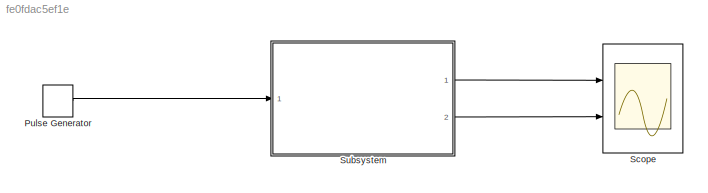
MODEL slx_fe0fdac5ef1e
KIND model
CONFIG AbsTol = auto
CONFIG EnableMultiTasking = off
CONFIG FixedStep = 0.01
CONFIG MaxStep = auto
CONFIG MinStep = auto
CONFIG RelTol = 1e-3
CONFIG SampleTimeConstraint = Unconstrained
CONFIG SolverName = ode3
CONFIG StartTime = 0.0
CONFIG StopTime = 10.0
BLOCK [DiscretePulseGenerator] Pulse Generator
  Ports = [0, 1]
  PulseType = Time based
  PulseWidth = 50
BLOCK [Scope] Scope
  Floating = off
  NumInputPorts = 2
  Ports = [2]
  ScopeSpecificationString = Simulink.scopes.TimeScopeBlockCfg('CurrentConfiguration', extmgr.ConfigurationSet(extmgr.Configuration('Core','General UI',true),extmgr.Configuration('Core','Source UI',true),extmgr.Configuration('Sources','WiredSimulink',true),extmgr.Configuration('Visuals','Time Domain',true,'SerializedDisplays',{struct('MinYLimReal','-0.38702','MaxYLimReal','3.48317','YLabelReal','','MinYLimMag','0.00000','MaxY...<+1365ch>
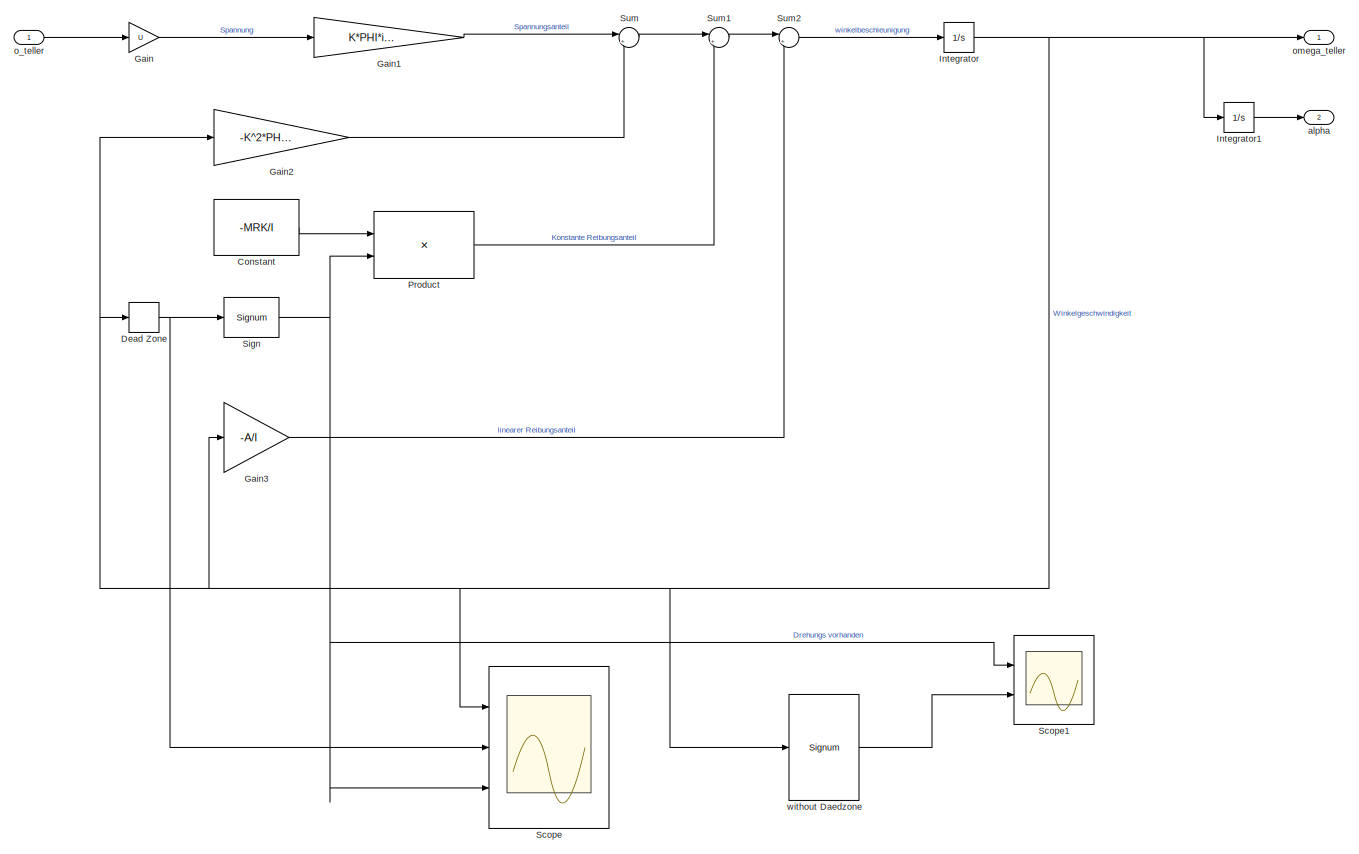
[diagram: Subsystem - part 1/1, most of the canvas]
BLOCK [SubSystem] Subsystem
  Ports = [1, 2]
  RequestExecContextInheritance = off
BLOCK [Constant] Subsystem/Constant
  Value = -MRK/I
BLOCK [DeadZone] Subsystem/Dead Zone
BLOCK [Gain] Subsystem/Gain
  Gain = U
BLOCK [Gain] Subsystem/Gain1
  Gain = K*PHI*igetr/Ra/I
BLOCK [Gain] Subsystem/Gain2
  Gain = -K^2*PHI^2*igetr^2/Ra/I
BLOCK [Gain] Subsystem/Gain3
  Gain = -A/I
BLOCK [Integrator] Subsystem/Integrator
  Ports = [1, 1]
BLOCK [Integrator] Subsystem/Integrator1
  Ports = [1, 1]
BLOCK [Product] Subsystem/Product
  Ports = [2, 1]
BLOCK [Scope] Subsystem/Scope
  Floating = off
  NumInputPorts = 3
  Ports = [3]
  ScopeSpecificationString = Simulink.scopes.TimeScopeBlockCfg('CurrentConfiguration', extmgr.ConfigurationSet(extmgr.Configuration('Core','General UI',true),extmgr.Configuration('Core','Source UI',true),extmgr.Configuration('Sources','WiredSimulink',true,'DataLoggingVariableName','ScopeData1'),extmgr.Configuration('Visuals','Time Domain',true,'SerializedDisplays',{struct('MinYLimReal','-0.125','MaxYLimReal','1.125','YLabelRe...<+1476ch>
BLOCK [Scope] Subsystem/Scope1
  Floating = off
  NumInputPorts = 2
  Ports = [2]
  ScopeSpecificationString = Simulink.scopes.TimeScopeBlockCfg('CurrentConfiguration', extmgr.ConfigurationSet(extmgr.Configuration('Core','General UI',true),extmgr.Configuration('Core','Source UI',true),extmgr.Configuration('Sources','WiredSimulink',true,'DataLoggingVariableName','ScopeData2'),extmgr.Configuration('Visuals','Time Domain',true,'SerializedDisplays',{struct('MinYLimReal','-0.125','MaxYLimReal','1.125','YLabelRe...<+1412ch>
BLOCK [Signum] Subsystem/Sign
BLOCK [Sum] Subsystem/Sum
  Inputs = |++
  NameLocation = top
  Ports = [2, 1]
BLOCK [Sum] Subsystem/Sum1
  Inputs = |++
  Ports = [2, 1]
BLOCK [Sum] Subsystem/Sum2
  Inputs = |++
  Ports = [2, 1]
BLOCK [Outport] Subsystem/alpha
  NameLocation = right
  Port = 2
BLOCK [Inport] Subsystem/o_teller
BLOCK [Outport] Subsystem/omega_teller
BLOCK [Signum] Subsystem/without Daedzone
LINE Pulse Generator:1 -> Subsystem:1
LINE Subsystem/Constant:1 -> Subsystem/Product:1
NET Subsystem/Dead Zone:1 -> Subsystem/Scope:2, Subsystem/Sign:1
LINE Subsystem/Gain1:1 -> Subsystem/Sum:1
LINE Subsystem/Gain2:1 -> Subsystem/Sum:2
LINE Subsystem/Gain3:1 -> Subsystem/Sum2:2
LINE Subsystem/Gain:1 -> Subsystem/Gain1:1
LINE Subsystem/Integrator1:1 -> Subsystem/alpha:1
NET Subsystem/Integrator:1 -> Subsystem/Dead Zone:1, Subsystem/Gain2:1, Subsystem/Gain3:1, Subsystem/Integrator1:1, Subsystem/Scope:1, Subsystem/omega_teller:1, Subsystem/without Daedzone:1
LINE Subsystem/Product:1 -> Subsystem/Sum1:2
NET Subsystem/Sign:1 -> Subsystem/Product:2, Subsystem/Scope1:1, Subsystem/Scope:3
LINE Subsystem/Sum1:1 -> Subsystem/Sum2:1
LINE Subsystem/Sum2:1 -> Subsystem/Integrator:1
LINE Subsystem/Sum:1 -> Subsystem/Sum1:1
LINE Subsystem/o_teller:1 -> Subsystem/Gain:1
LINE Subsystem/without Daedzone:1 -> Subsystem/Scope1:2
LINE Subsystem:1 -> Scope:1
LINE Subsystem:2 -> Scope:2
note: NET lines group one-source signal fan-out (src -> all destinations, sorted); 1:1 wires keep LINE
